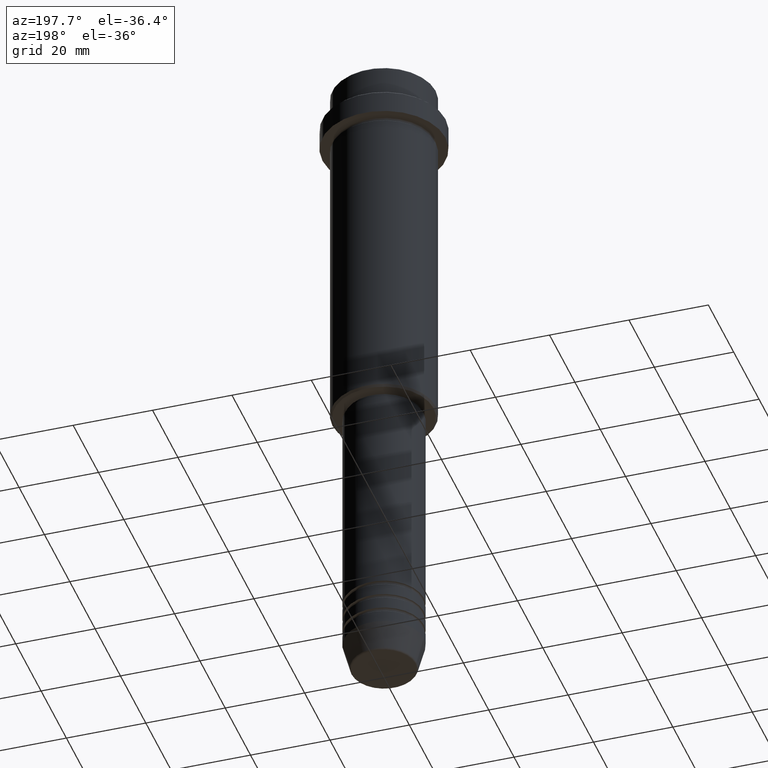
[diagram: clean part render]
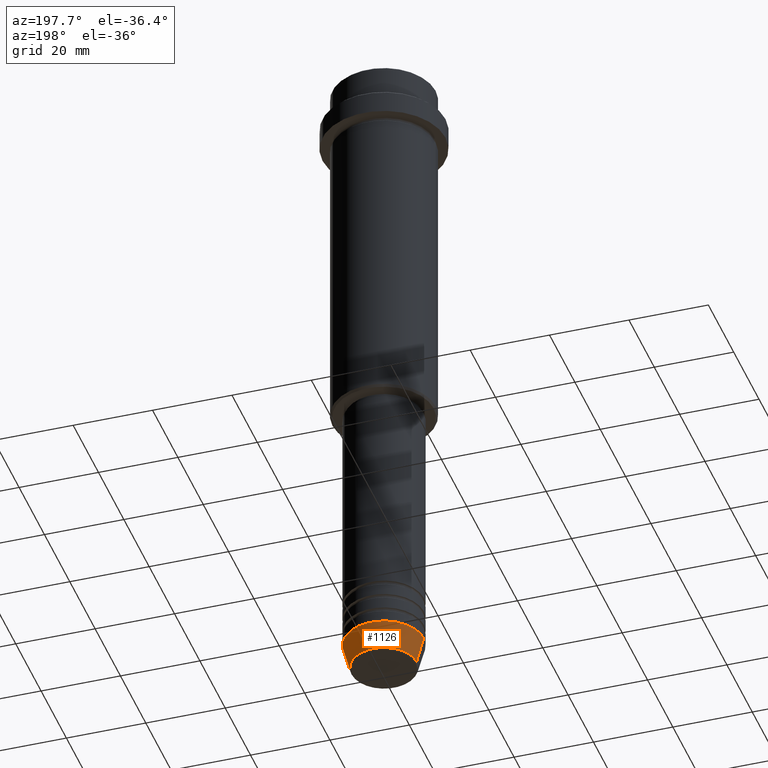
[diagram: same view with one face highlighted and labeled with its STEP entity id]
A machine part, auxiliary view. The second image highlights one B-rep face of the part: STEP entity #1126.
In plain terms, the highlighted conical surface has half-angle 15 deg.
Its self-contained STEP definition (entity closure, byte-faithful):
#23 = LINE ( 'NONE', #549, #626 ) ;
#33 = CARTESIAN_POINT ( 'NONE',  ( 8.223655072137200150, 0.000000000000000000, -169.6294095225512422 ) ) ;
#150 = EDGE_CURVE ( 'NONE', #213, #301, #1169, .T. ) ;
#151 = CIRCLE ( 'NONE', #942, 8.223655072137200150 ) ;
#172 = CARTESIAN_POINT ( 'NONE',  ( 10.00000000000000000, 0.000000000000000000, -163.0000000000000000 ) ) ;
#180 = DIRECTION ( 'NONE',  ( -0.000000000000000000, -0.000000000000000000, 1.000000000000000000 ) ) ;
#213 = VERTEX_POINT ( 'NONE', #33 ) ;
#225 = VERTEX_POINT ( 'NONE', #854 ) ;
#254 = ORIENTED_EDGE ( 'NONE', *, *, #150, .F. ) ;
#301 = VERTEX_POINT ( 'NONE', #989 ) ;
#335 = EDGE_CURVE ( 'NONE', #301, #225, #1213, .T. ) ;
#356 = ORIENTED_EDGE ( 'NONE', *, *, #587, .T. ) ;
#446 = DIRECTION ( 'NONE',  ( 1.000000000000000000, 0.000000000000000000, 0.000000000000000000 ) ) ;
#457 = VERTEX_POINT ( 'NONE', #643 ) ;
#473 = VECTOR ( 'NONE', #604, 1000.000000000000114 ) ;
#549 = CARTESIAN_POINT ( 'NONE',  ( -10.00000000000000000, 1.224646799147353256E-15, -163.0000000000000000 ) ) ;
#553 = ORIENTED_EDGE ( 'NONE', *, *, #335, .F. ) ;
#587 = EDGE_CURVE ( 'NONE', #457, #225, #23, .T. ) ;
#604 = DIRECTION ( 'NONE',  ( 0.2588190451025215721, 0.000000000000000000, 0.9659258262890679791 ) ) ;
#622 = ORIENTED_EDGE ( 'NONE', *, *, #1367, .T. ) ;
#626 = VECTOR ( 'NONE', #988, 1000.000000000000114 ) ;
#643 = CARTESIAN_POINT ( 'NONE',  ( -8.223655072137200150, 1.115877042642912645E-15, -169.6294095225512422 ) ) ;
#665 = AXIS2_PLACEMENT_3D ( 'NONE', #990, #1195, #446 ) ;
#684 = CONICAL_SURFACE ( 'NONE', #665, 10.00000000000000000, 0.2617993877991502960 ) ;
#795 = EDGE_LOOP ( 'NONE', ( #622, #356, #553, #254 ) ) ;
#801 = DIRECTION ( 'NONE',  ( 1.000000000000000000, 0.000000000000000000, 0.000000000000000000 ) ) ;
#831 = CARTESIAN_POINT ( 'NONE',  ( 0.000000000000000000, 0.000000000000000000, -169.6294095225512422 ) ) ;
#854 = CARTESIAN_POINT ( 'NONE',  ( -10.00000000000000000, 1.224646799147353256E-15, -163.0000000000000000 ) ) ;
#861 = FACE_OUTER_BOUND ( 'NONE', #795, .T. ) ;
#919 = AXIS2_PLACEMENT_3D ( 'NONE', #1039, #1249, #801 ) ;
#942 = AXIS2_PLACEMENT_3D ( 'NONE', #831, #180, #1372 ) ;
#988 = DIRECTION ( 'NONE',  ( -0.2588190451025215721, 3.169619151431775418E-17, 0.9659258262890679791 ) ) ;
#989 = CARTESIAN_POINT ( 'NONE',  ( 10.00000000000000000, 0.000000000000000000, -163.0000000000000000 ) ) ;
#990 = CARTESIAN_POINT ( 'NONE',  ( 0.000000000000000000, 0.000000000000000000, -163.0000000000000000 ) ) ;
#1039 = CARTESIAN_POINT ( 'NONE',  ( 0.000000000000000000, 0.000000000000000000, -163.0000000000000000 ) ) ;
#1126 = ADVANCED_FACE ( 'NONE', ( #861 ), #684, .T. ) ;
#1169 = LINE ( 'NONE', #172, #473 ) ;
#1195 = DIRECTION ( 'NONE',  ( -0.000000000000000000, -0.000000000000000000, 1.000000000000000000 ) ) ;
#1213 = CIRCLE ( 'NONE', #919, 10.00000000000000000 ) ;
#1249 = DIRECTION ( 'NONE',  ( -0.000000000000000000, -0.000000000000000000, 1.000000000000000000 ) ) ;
#1367 = EDGE_CURVE ( 'NONE', #213, #457, #151, .T. ) ;
#1372 = DIRECTION ( 'NONE',  ( 1.000000000000000000, 0.000000000000000000, 0.000000000000000000 ) ) ;